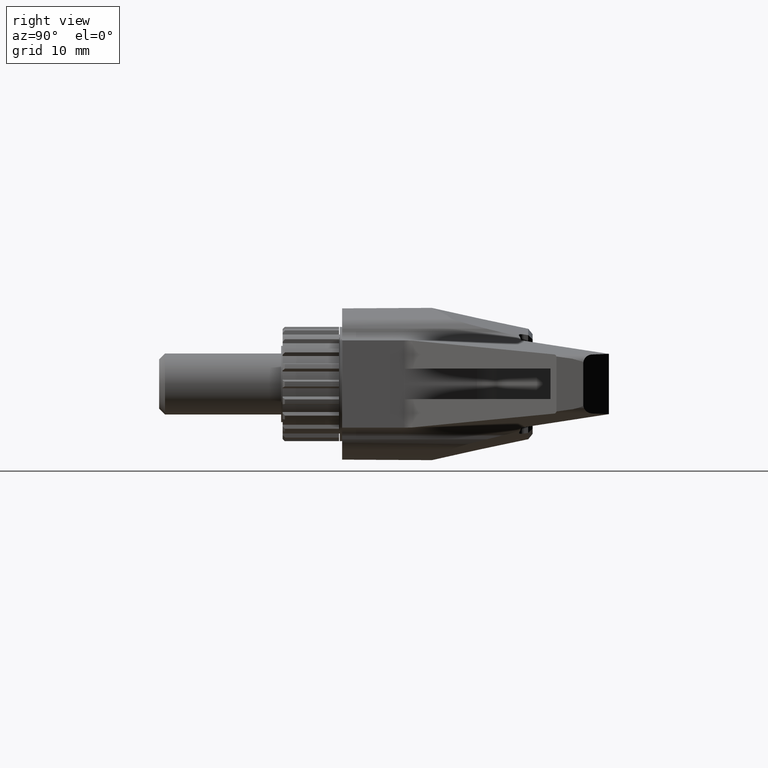
[diagram: clean part render]
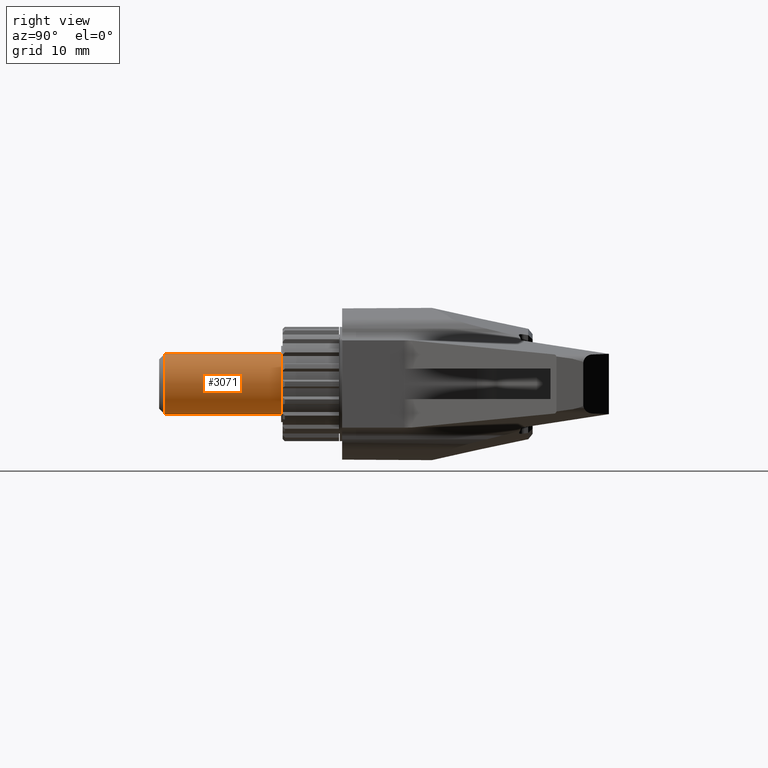
[diagram: same view with one face highlighted and labeled with its STEP entity id]
A machine part, right view. The second image highlights one B-rep face of the part: STEP entity #3071.
In plain terms, the highlighted cylindrical surface (bore or boss wall) has radius 4 mm, axis along (0, 1, 0).
Its self-contained STEP definition (entity closure, byte-faithful):
#166=CYLINDRICAL_SURFACE('',#3349,4.);
#192=FACE_BOUND('',#963,.T.);
#786=FACE_OUTER_BOUND('',#962,.T.);
#962=EDGE_LOOP('',(#2494));
#963=EDGE_LOOP('',(#2495));
#1138=CIRCLE('',#3348,4.);
#1139=CIRCLE('',#3350,4.);
#1426=VERTEX_POINT('',#5130);
#1427=VERTEX_POINT('',#5133);
#1831=EDGE_CURVE('',#1426,#1426,#1138,.T.);
#1832=EDGE_CURVE('',#1427,#1427,#1139,.T.);
#2494=ORIENTED_EDGE('',*,*,#1831,.F.);
#2495=ORIENTED_EDGE('',*,*,#1832,.T.);
#3071=ADVANCED_FACE('',(#786,#192),#166,.T.);
#3348=AXIS2_PLACEMENT_3D('',#5131,#4084,#4085);
#3349=AXIS2_PLACEMENT_3D('',#5132,#4086,#4087);
#3350=AXIS2_PLACEMENT_3D('',#5134,#4088,#4089);
#4084=DIRECTION('center_axis',(0.,-1.,0.));
#4085=DIRECTION('ref_axis',(0.,0.,-1.));
#4086=DIRECTION('center_axis',(0.,1.,0.));
#4087=DIRECTION('ref_axis',(0.,0.,-1.));
#4088=DIRECTION('center_axis',(0.,-1.,0.));
#4089=DIRECTION('ref_axis',(0.,0.,-1.));
#5130=CARTESIAN_POINT('',(0.,-15.233,-4.));
#5131=CARTESIAN_POINT('Origin',(0.,-15.233,0.));
#5132=CARTESIAN_POINT('Origin',(0.,-16.,0.));
#5133=CARTESIAN_POINT('',(0.,0.,-4.));
#5134=CARTESIAN_POINT('Origin',(0.,0.,0.));